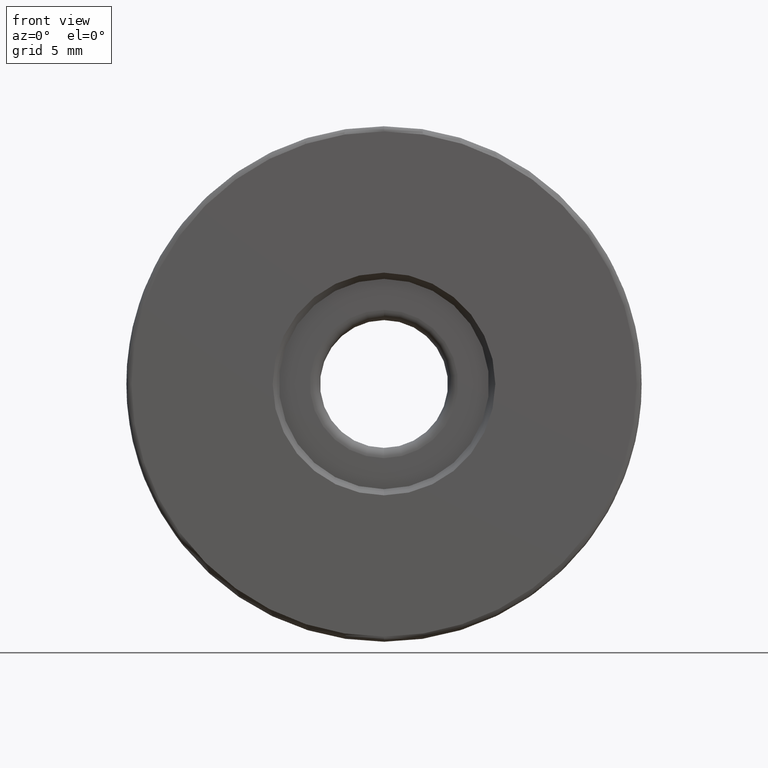
[diagram: clean part render]
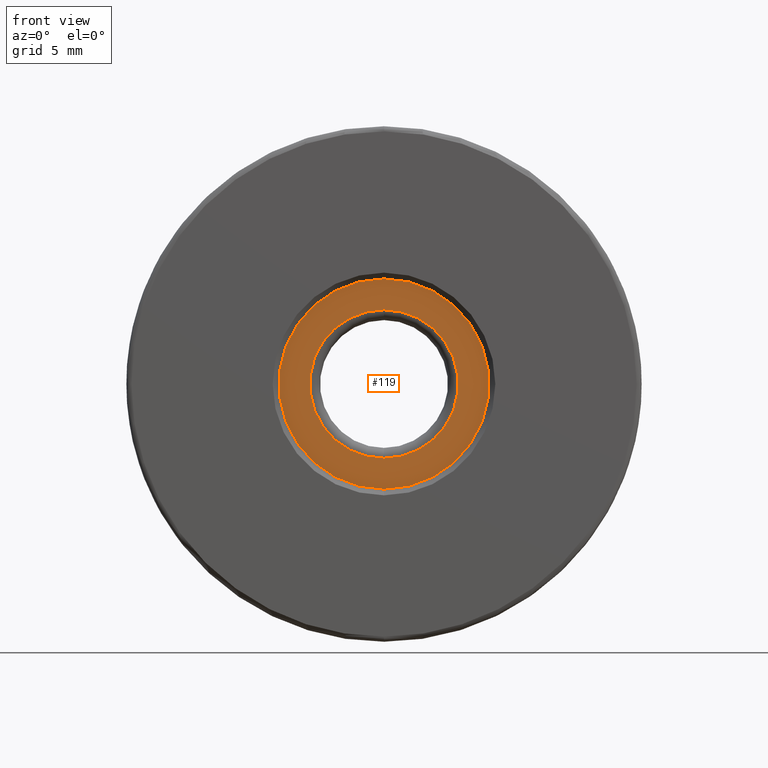
[diagram: same view with one face highlighted and labeled with its STEP entity id]
A machine part, front view. The second image highlights one B-rep face of the part: STEP entity #119.
In plain terms, the highlighted planar face has unit normal (0, -1, 0).
Its self-contained STEP definition (entity closure, byte-faithful):
#11 = DIRECTION ( 'NONE',  ( 0.0000000000000000000, -1.000000000000000000, 0.0000000000000000000 ) ) ;
#17 = EDGE_CURVE ( 'NONE', #451, #68, #478, .T. ) ;
#26 = EDGE_CURVE ( 'NONE', #68, #451, #173, .T. ) ;
#31 = CARTESIAN_POINT ( 'NONE',  ( -4.682026255059963837, -2.794975976998274714, 30.10000000000000142 ) ) ;
#37 = CARTESIAN_POINT ( 'NONE',  ( -4.682026255059964726, -2.794975976998274714, 21.40000000000000213 ) ) ;
#46 = ORIENTED_EDGE ( 'NONE', *, *, #139, .F. ) ;
#68 = VERTEX_POINT ( 'NONE', #289 ) ;
#72 = AXIS2_PLACEMENT_3D ( 'NONE', #586, #190, #571 ) ;
#82 = DIRECTION ( 'NONE',  ( -0.0000000000000000000, 1.000000000000000000, -0.0000000000000000000 ) ) ;
#90 = DIRECTION ( 'NONE',  ( 0.0000000000000000000, 0.0000000000000000000, -1.000000000000000000 ) ) ;
#111 = CARTESIAN_POINT ( 'NONE',  ( -4.682026255059964726, -2.794975976998274714, 19.90000000000000213 ) ) ;
#116 = EDGE_LOOP ( 'NONE', ( #303, #487 ) ) ;
#119 = ADVANCED_FACE ( 'NONE', ( #525, #523 ), #536, .T. ) ;
#139 = EDGE_CURVE ( 'NONE', #340, #393, #323, .T. ) ;
#142 = CARTESIAN_POINT ( 'NONE',  ( -4.682026255059964726, -2.794975976998274714, 25.00000000000000000 ) ) ;
#173 = CIRCLE ( 'NONE', #437, 3.599999999999999201 ) ;
#190 = DIRECTION ( 'NONE',  ( -0.0000000000000000000, 1.000000000000000000, -0.0000000000000000000 ) ) ;
#221 = DIRECTION ( 'NONE',  ( 0.0000000000000000000, 0.0000000000000000000, 1.000000000000000000 ) ) ;
#231 = AXIS2_PLACEMENT_3D ( 'NONE', #324, #556, #221 ) ;
#275 = DIRECTION ( 'NONE',  ( 0.0000000000000000000, 0.0000000000000000000, -1.000000000000000000 ) ) ;
#289 = CARTESIAN_POINT ( 'NONE',  ( -4.682026255059962949, -2.794975976998274714, 28.60000000000000142 ) ) ;
#303 = ORIENTED_EDGE ( 'NONE', *, *, #17, .T. ) ;
#322 = DIRECTION ( 'NONE',  ( -0.0000000000000000000, 1.000000000000000000, -0.0000000000000000000 ) ) ;
#323 = CIRCLE ( 'NONE', #72, 5.100000000000000533 ) ;
#324 = CARTESIAN_POINT ( 'NONE',  ( -4.682026255059964726, -2.794975976998274714, 25.00000000000000000 ) ) ;
#340 = VERTEX_POINT ( 'NONE', #111 ) ;
#352 = AXIS2_PLACEMENT_3D ( 'NONE', #617, #322, #275 ) ;
#362 = AXIS2_PLACEMENT_3D ( 'NONE', #142, #11, #422 ) ;
#373 = ORIENTED_EDGE ( 'NONE', *, *, #485, .F. ) ;
#393 = VERTEX_POINT ( 'NONE', #31 ) ;
#422 = DIRECTION ( 'NONE',  ( 0.0000000000000000000, 0.0000000000000000000, 1.000000000000000000 ) ) ;
#437 = AXIS2_PLACEMENT_3D ( 'NONE', #511, #82, #90 ) ;
#451 = VERTEX_POINT ( 'NONE', #37 ) ;
#478 = CIRCLE ( 'NONE', #352, 3.599999999999999201 ) ;
#485 = EDGE_CURVE ( 'NONE', #393, #340, #503, .T. ) ;
#487 = ORIENTED_EDGE ( 'NONE', *, *, #26, .T. ) ;
#503 = CIRCLE ( 'NONE', #231, 5.100000000000000533 ) ;
#511 = CARTESIAN_POINT ( 'NONE',  ( -4.682026255059964726, -2.794975976998274714, 25.00000000000000000 ) ) ;
#519 = EDGE_LOOP ( 'NONE', ( #46, #373 ) ) ;
#523 = FACE_OUTER_BOUND ( 'NONE', #519, .T. ) ;
#525 = FACE_BOUND ( 'NONE', #116, .T. ) ;
#536 = PLANE ( 'NONE',  #362 ) ;
#556 = DIRECTION ( 'NONE',  ( -0.0000000000000000000, 1.000000000000000000, -0.0000000000000000000 ) ) ;
#571 = DIRECTION ( 'NONE',  ( 0.0000000000000000000, 0.0000000000000000000, 1.000000000000000000 ) ) ;
#586 = CARTESIAN_POINT ( 'NONE',  ( -4.682026255059964726, -2.794975976998274714, 25.00000000000000000 ) ) ;
#617 = CARTESIAN_POINT ( 'NONE',  ( -4.682026255059964726, -2.794975976998274714, 25.00000000000000000 ) ) ;